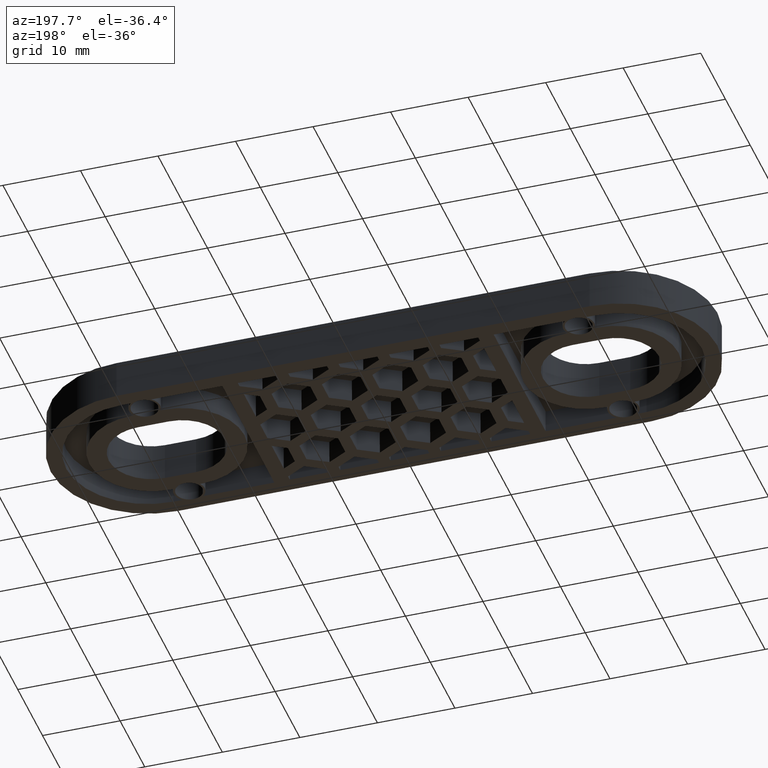
[diagram: clean part render]
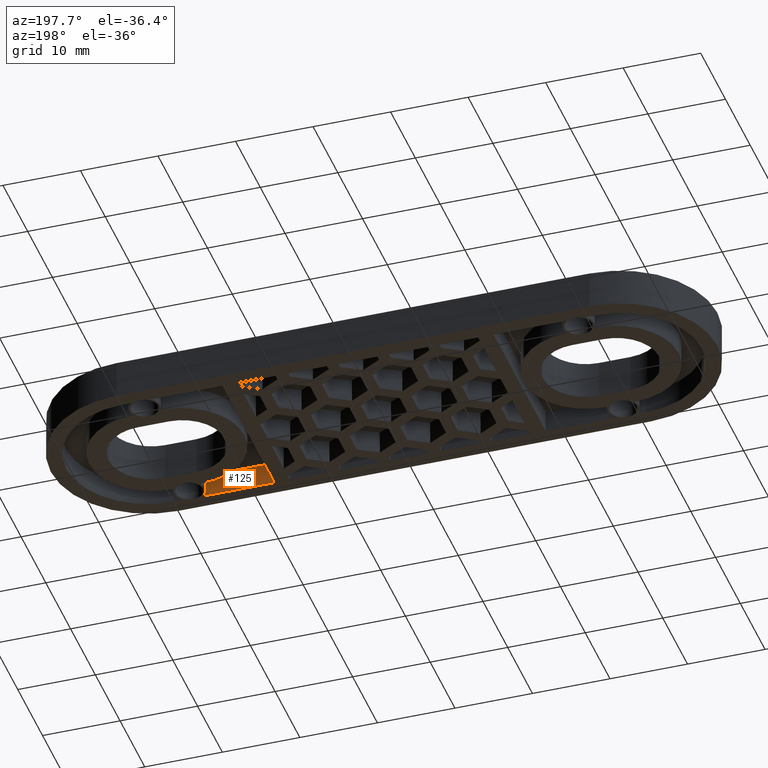
[diagram: same view with one face highlighted and labeled with its STEP entity id]
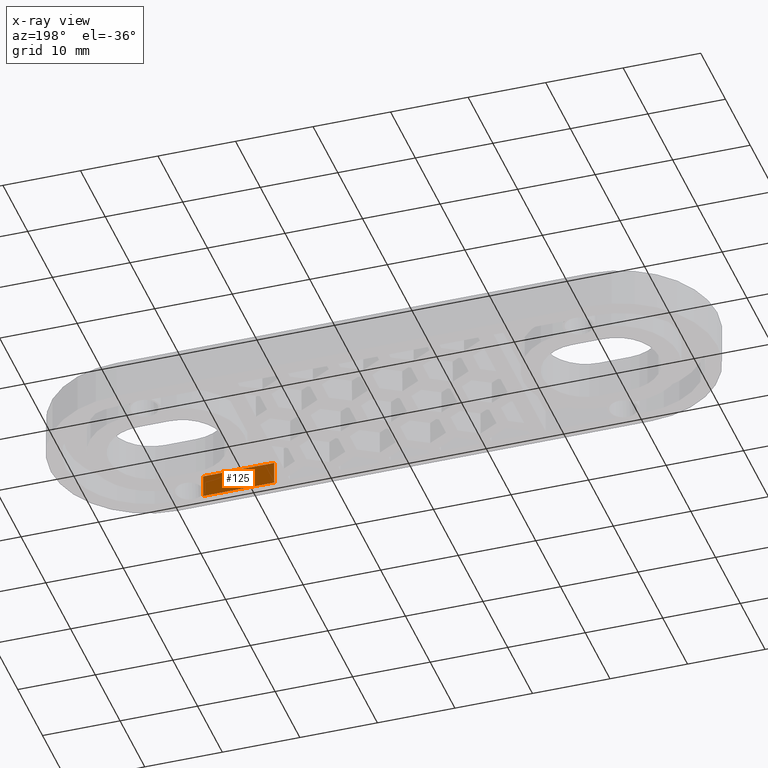
[diagram: x-ray of the same camera — body ghosted, the highlighted face saturated]
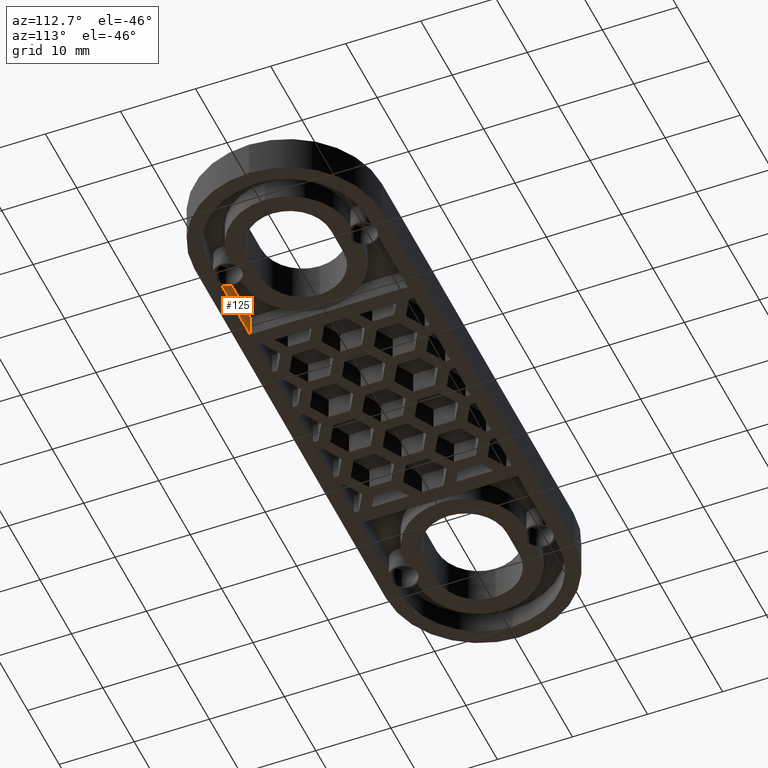
[diagram: same view with one face highlighted and labeled with its STEP entity id]
A machine part, auxiliary view. The second image highlights one B-rep face of the part: STEP entity #125.
The next image is the same camera in x-ray: the body ghosted, the highlighted face saturated — about 0% of this face is hidden behind the body in this view.
A second angle (auxiliary view) of the same face is appended — the face is thin or edge-on in the first view.
In plain terms, the highlighted planar face has unit normal (0, 1, -0).
Its self-contained STEP definition (entity closure, byte-faithful):
#125 = ADVANCED_FACE( '', ( #501 ), #502, .T. );
#501 = FACE_OUTER_BOUND( '', #1109, .T. );
#502 = PLANE( '', #1110 );
#1109 = EDGE_LOOP( '', ( #2169, #2170, #2171, #2172 ) );
#1110 = AXIS2_PLACEMENT_3D( '', #2173, #2174, #2175 );
#2169 = ORIENTED_EDGE( '', *, *, #4151, .F. );
#2170 = ORIENTED_EDGE( '', *, *, #3868, .F. );
#2171 = ORIENTED_EDGE( '', *, *, #4152, .F. );
#2172 = ORIENTED_EDGE( '', *, *, #4153, .F. );
#2173 = CARTESIAN_POINT( '', ( 30.5000000000000, -10.5000000000000, -2.99999999979699 ) );
#2174 = DIRECTION( '', ( 0.000000000000000, 1.00000000000000, -6.12303176911189E-017 ) );
#2175 = DIRECTION( '', ( 1.00000000000000, 0.000000000000000, 0.000000000000000 ) );
#3868 = EDGE_CURVE( '', #4633, #4634, #4635, .T. );
#4151 = EDGE_CURVE( '', #4634, #5155, #5156, .T. );
#4152 = EDGE_CURVE( '', #5157, #4633, #5158, .T. );
#4153 = EDGE_CURVE( '', #5155, #5157, #5159, .T. );
#4633 = VERTEX_POINT( '', #5844 );
#4634 = VERTEX_POINT( '', #5845 );
#4635 = LINE( '', #5846, #5847 );
#5155 = VERTEX_POINT( '', #6617 );
#5156 = LINE( '', #6618, #6619 );
#5157 = VERTEX_POINT( '', #6620 );
#5158 = LINE( '', #6621, #6622 );
#5159 = LINE( '', #6623, #6624 );
#5844 = CARTESIAN_POINT( '', ( 17.5000000000000, -10.5000000000000, -6.29597556815048E-015 ) );
#5845 = CARTESIAN_POINT( '', ( 26.6771243444677, -10.5000000000000, -6.29597556815048E-015 ) );
#5846 = CARTESIAN_POINT( '', ( 30.5000000000000, -10.5000000000000, -6.29597556815048E-015 ) );
#5847 = VECTOR( '', #7558, 1000.00000000000 );
#6617 = CARTESIAN_POINT( '', ( 26.6771243444677, -10.5000000000000, 3.00000000000000 ) );
#6618 = CARTESIAN_POINT( '', ( 26.6771243444677, -10.5000000000000, 3.00000000000000 ) );
#6619 = VECTOR( '', #7905, 1000.00000000000 );
#6620 = CARTESIAN_POINT( '', ( 17.5000000000000, -10.5000000000000, 3.00000000000000 ) );
#6621 = CARTESIAN_POINT( '', ( 17.5000000000000, -10.5000000000000, 3.00000000000000 ) );
#6622 = VECTOR( '', #7906, 1000.00000000000 );
#6623 = CARTESIAN_POINT( '', ( 30.5000000000000, -10.5000000000000, 3.00000000000000 ) );
#6624 = VECTOR( '', #7907, 1000.00000000000 );
#7558 = DIRECTION( '', ( 1.00000000000000, 0.000000000000000, 0.000000000000000 ) );
#7905 = DIRECTION( '', ( 0.000000000000000, 6.12303176911189E-017, 1.00000000000000 ) );
#7906 = DIRECTION( '', ( 0.000000000000000, -6.12303176911189E-017, -1.00000000000000 ) );
#7907 = DIRECTION( '', ( -1.00000000000000, 0.000000000000000, 0.000000000000000 ) );